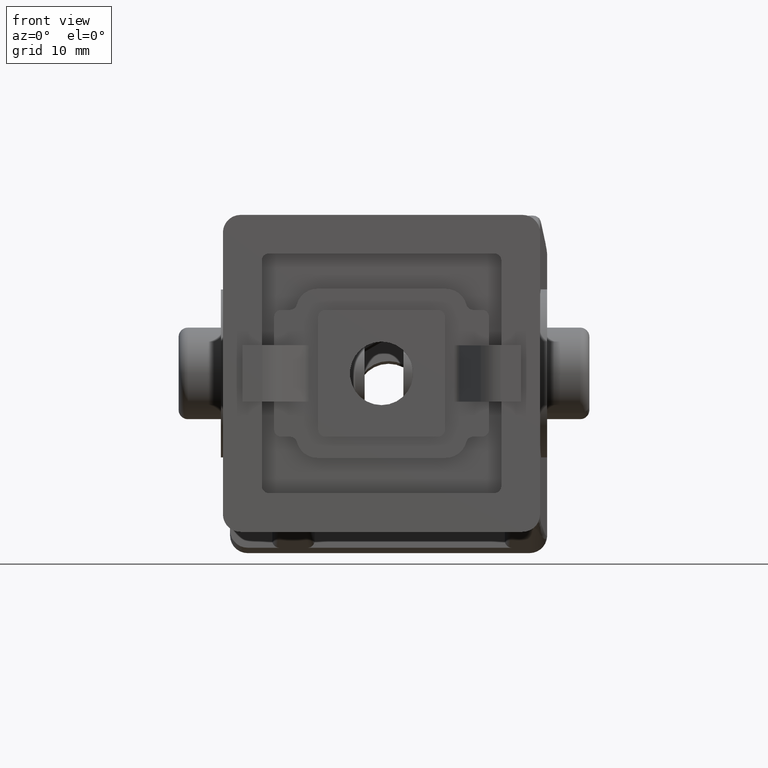
[diagram: clean part render]
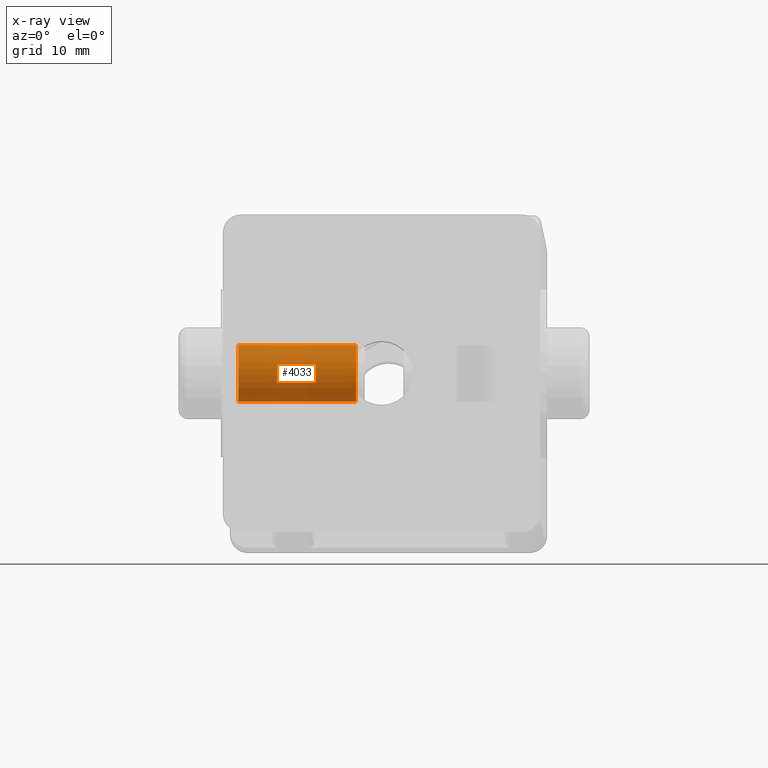
[diagram: x-ray — body ghosted, one internal face saturated and labeled with its STEP entity id]
A machine part, front view, then the same camera in x-ray: the body is ghosted and one INTERNAL B-rep face — a face not visible from any outside direction — is saturated and labeled: STEP entity #4033.
In plain terms, the highlighted cylindrical surface (bore or boss wall) has radius 4 mm, axis along (1, 0, 0).
Its self-contained STEP definition (entity closure, byte-faithful):
#962=FACE_BOUND('',#1437,.T.);
#1027=CYLINDRICAL_SURFACE('',#4371,4.);
#1176=FACE_OUTER_BOUND('',#1436,.T.);
#1436=EDGE_LOOP('',(#3430));
#1437=EDGE_LOOP('',(#3431));
#1672=CIRCLE('',#4370,4.);
#1673=CIRCLE('',#4372,4.);
#1988=VERTEX_POINT('',#7329);
#1989=VERTEX_POINT('',#7332);
#2494=EDGE_CURVE('',#1988,#1988,#1672,.T.);
#2495=EDGE_CURVE('',#1989,#1989,#1673,.T.);
#3430=ORIENTED_EDGE('',*,*,#2495,.F.);
#3431=ORIENTED_EDGE('',*,*,#2494,.T.);
#4033=ADVANCED_FACE('',(#1176,#962),#1027,.T.);
#4370=AXIS2_PLACEMENT_3D('',#7330,#5204,#5205);
#4371=AXIS2_PLACEMENT_3D('',#7331,#5206,#5207);
#4372=AXIS2_PLACEMENT_3D('',#7333,#5208,#5209);
#5204=DIRECTION('center_axis',(1.,2.29334027171402E-33,0.));
#5205=DIRECTION('ref_axis',(0.,1.,0.));
#5206=DIRECTION('center_axis',(1.,2.29334027171402E-33,0.));
#5207=DIRECTION('ref_axis',(0.,1.,0.));
#5208=DIRECTION('center_axis',(1.,2.29334027171402E-33,0.));
#5209=DIRECTION('ref_axis',(0.,1.,0.));
#7329=CARTESIAN_POINT('',(8.5,4.,0.));
#7330=CARTESIAN_POINT('Origin',(8.5,9.17336108685606E-33,0.));
#7331=CARTESIAN_POINT('Origin',(16.85,2.83227523556681E-32,0.));
#7332=CARTESIAN_POINT('',(25.2,4.,0.));
#7333=CARTESIAN_POINT('Origin',(25.2,4.74721436244801E-32,0.));